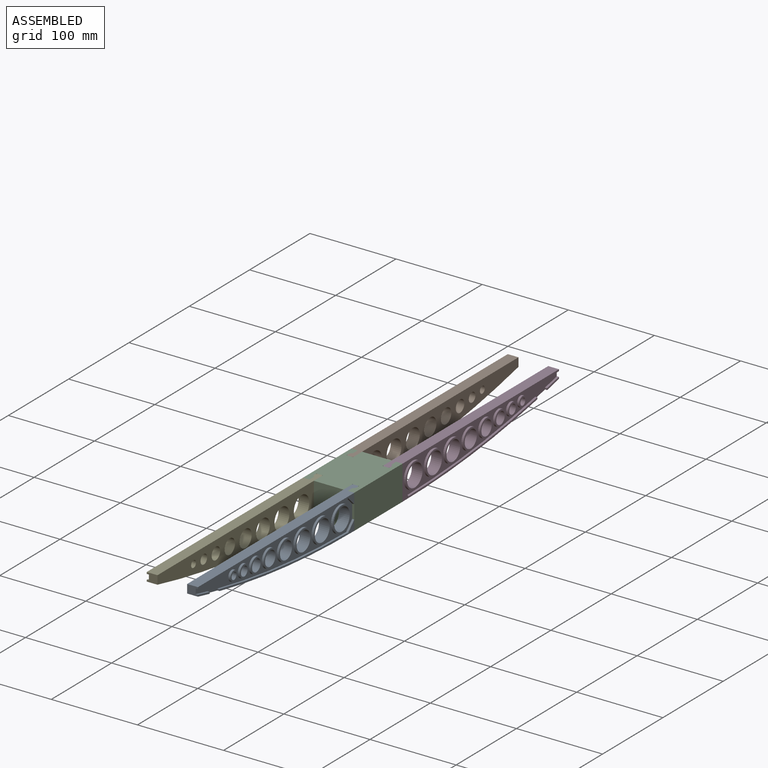
[diagram: assembled view]
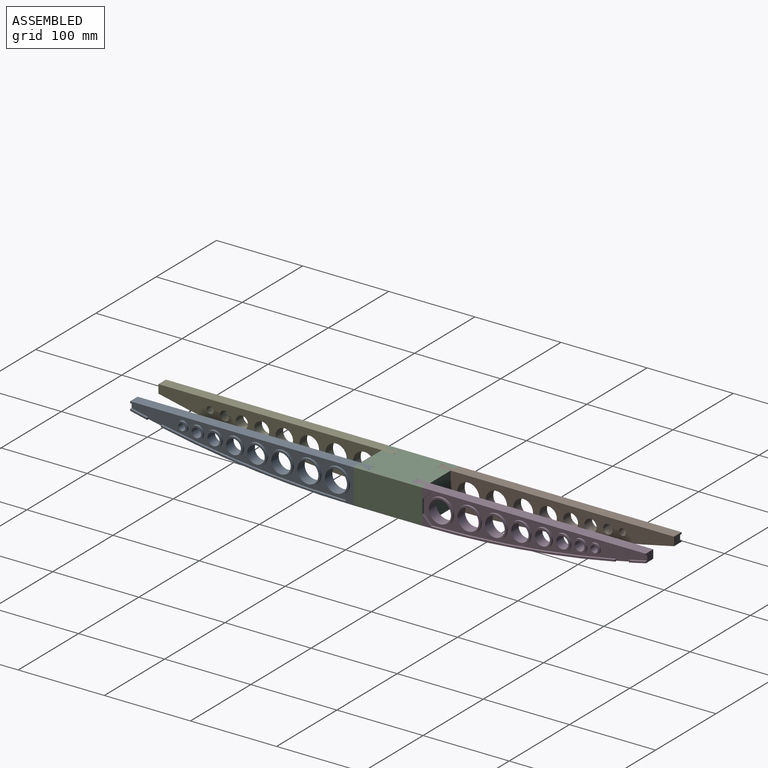
[diagram: assembled view, second angle]
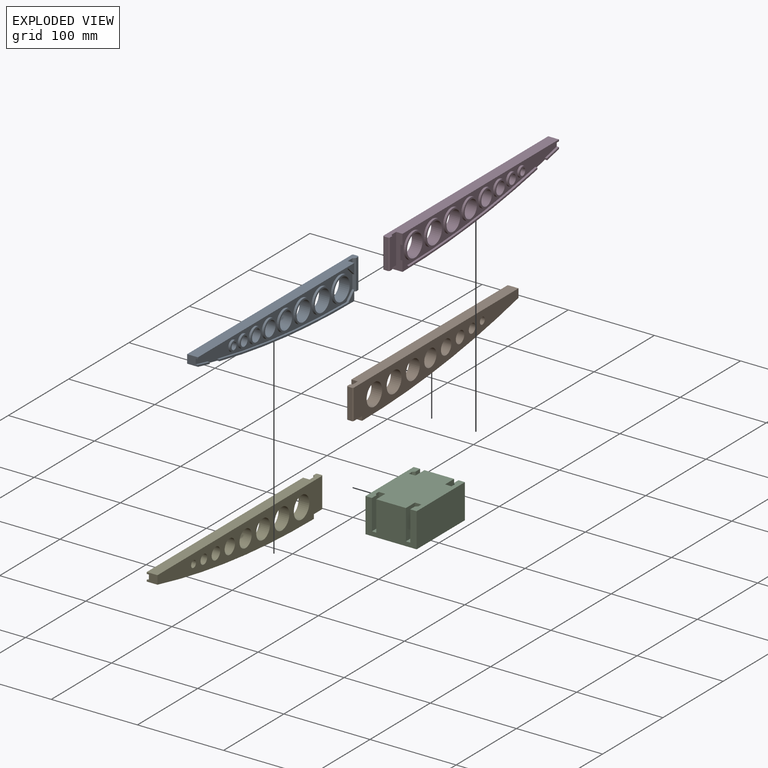
[diagram: exploded view]
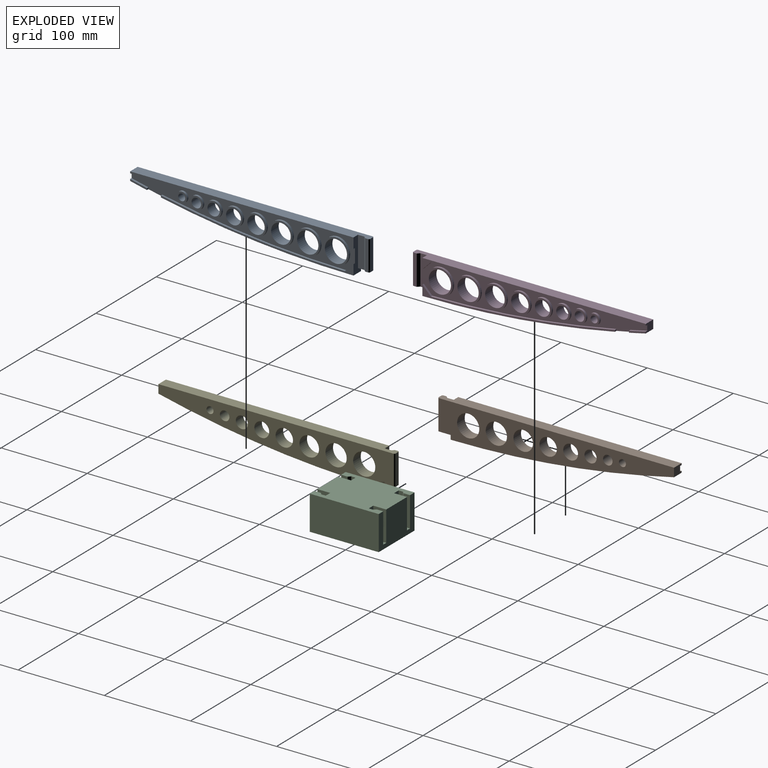
[diagram: exploded view, second angle]
ASSEMBLY  parts=5 mates=4
PART A: 49 faces, bbox 12.5x274.4x40 mm
  f0: cylinder r=1136.04mm len=259.35mm, axis (-1,0,0), area 3220.1mm2, adj f1,f3,f4,f6,f7,f10,f45,f46
  f1: plane 19.56x6.41mm, normal (-1,0,0), area 39mm2, adj f0,f2,f6,f45
  f2: cylinder r=1134.09mm len=19.56mm, axis (1,0,0), area 50.1mm2, adj f1,f3,f6,f45
  f3: plane 259.35x36.01mm, normal (-1,0,0), area 3435.9mm2, adj f0,f2,f4,f6,f9,f11,f21,f23
  f4: plane 40x12.5mm, normal (0,-1,0), area 284.9mm2, adj f0,f3,f5,f7,f8,f10,f36,f39
  f5: plane 274.35x12.5mm, normal (0,0,1), area 3331.5mm2, adj f4,f6,f7,f8,f36,f37,f38,f40
  f6: plane 12.5x10mm, normal (0,1,0), area 110mm2, adj f0,f1,f2,f3,f5,f7,f8,f9
  f7: plane 273.35x40mm, normal (1,0,0), area 6025.4mm2, adj f0,f4,f5,f6,f12,f13,f14,f15
  f8: plane 259.35x12mm, normal (-1,0,0), area 568.7mm2, adj f4,f5,f6,f9,f44
  f9: plane 249.35x2.5mm, normal (0,0,-1), area 623.4mm2, adj f3,f6,f8,f44
  f10: plane 223.6x24.21mm, normal (-1,0,0), area 488.1mm2, adj f0,f4,f11,f43,f46
  f11: cylinder r=1134.09mm len=213.64mm, axis (1,0,0), area 537.8mm2, adj f3,f10,f43,f46
  f12: cylinder r=4.05mm len=12.5mm, axis (1,0,0), area 318.2mm2, adj f7,f20
  f13: cylinder r=5.5mm len=12.5mm, axis (1,0,0), area 432.3mm2, adj f7,f22
  f14: cylinder r=7.05mm len=14.1mm, axis (1,0,0), area 553.6mm2, adj f7,f24
  f15: cylinder r=8.61mm len=17.22mm, axis (1,0,0), area 676.2mm2, adj f7,f26
  f16: cylinder r=10.09mm len=20.18mm, axis (1,0,0), area 792.4mm2, adj f7,f28
  f17: cylinder r=11.37mm len=22.74mm, axis (1,0,0), area 892.9mm2, adj f7,f30
  f18: cylinder r=12.33mm len=24.66mm, axis (1,0,0), area 968.2mm2, adj f7,f32
  f19: cylinder r=12.87mm len=25.73mm, axis (1,0,0), area 1010.4mm2, adj f7,f34
  f20: plane 12.1x12.1mm, normal (-1,0,0), area 63.5mm2, adj f12,f21
  f21: cylinder r=6.05mm len=12.1mm, axis (1,0,0), area 95mm2, adj f3,f20
  f22: plane 15.01x15.01mm, normal (-1,0,0), area 81.7mm2, adj f13,f23
  f23: cylinder r=7.5mm len=15.01mm, axis (1,0,0), area 117.9mm2, adj f3,f22
  f24: plane 18.1x18.1mm, normal (-1,0,0), area 101.1mm2, adj f14,f25
  f25: cylinder r=9.05mm len=18.1mm, axis (1,0,0), area 142.1mm2, adj f3,f24
  f26: plane 21.22x21.22mm, normal (-1,0,0), area 120.8mm2, adj f15,f27
  f27: cylinder r=10.61mm len=21.22mm, axis (1,0,0), area 166.7mm2, adj f3,f26
  f28: plane 24.18x24.18mm, normal (-1,0,0), area 139.4mm2, adj f16,f29
  f29: cylinder r=12.09mm len=24.18mm, axis (1,0,0), area 189.9mm2, adj f3,f28
  f30: plane 26.74x26.74mm, normal (-1,0,0), area 155.4mm2, adj f17,f31
  f31: cylinder r=13.37mm len=26.74mm, axis (1,0,0), area 210mm2, adj f3,f30
  f32: plane 28.66x28.66mm, normal (-1,0,0), area 167.5mm2, adj f18,f33
  f33: cylinder r=14.33mm len=28.66mm, axis (1,0,0), area 225.1mm2, adj f3,f32
  f34: plane 29.73x29.73mm, normal (-1,0,0), area 174.2mm2, adj f19,f35
  f35: cylinder r=14.87mm len=29.73mm, axis (1,0,0), area 233.5mm2, adj f3,f34
  f36: plane 35x7.5mm, normal (-1,0,0), area 262.5mm2, adj f4,f5,f37,f39
  f37: plane 35x2.5mm, normal (-0.71,0.71,0), area 123.7mm2, adj f5,f36,f38,f39
  f38: plane 35x4mm, normal (-1,0,0), area 140mm2, adj f5,f37,f39,f42
  f39: plane 15x7.5mm, normal (0,0,-1), area 89.6mm2, adj f4,f7,f36,f37,f38,f40,f41,f42
  f40: plane 35x5.5mm, normal (0,-1,0), area 192.5mm2, adj f5,f39,f41,f42
  f41: plane 35x1mm, normal (0.71,-0.71,0), area 49.5mm2, adj f5,f7,f39,f40
  f42: plane 35x1mm, normal (-0.71,-0.71,0), area 49.5mm2, adj f5,f38,f39,f40
  f43: plane 9.96x9.96mm, normal (0,0.71,0.71), area 35.2mm2, adj f3,f4,f10,f11
  f44: plane 10x10mm, normal (0,0.71,-0.71), area 35.4mm2, adj f3,f4,f8,f9
  f45: plane 2.5x1.99mm, normal (0,-1,0), area 5mm2, adj f0,f1,f2,f3
  f46: plane 2.5x1.99mm, normal (0,1,0), area 5mm2, adj f0,f3,f10,f11
  f47: cylinder r=1.7mm len=7.95mm, axis (0,0,-1), area 81.1mm2, adj f0,f48
  f48: cone r=0mm half-angle=59deg, axis (0,0,-1), area 10.6mm2, adj f47
PART B: same geometry as A
PART C: 30 faces, bbox 59.5x80x40 mm
  f0: plane 59.45x40mm, normal (0,1,0), area 2028mm2, adj f2,f3,f4,f5,f6,f7,f9,f24
  f1: plane 59.45x40mm, normal (0,-1,0), area 2028mm2, adj f2,f3,f4,f5,f12,f13,f15,f18
  f2: plane 80x59.45mm, normal (0,0,1), area 4393.5mm2, adj f0,f1,f4,f5,f7,f8,f9,f10
  f3: plane 80x59.45mm, normal (0,0,-1), area 4756mm2, adj f0,f1,f4,f5
  f4: plane 80x40mm, normal (-1,0,0), area 3200mm2, adj f0,f1,f2,f3
  f5: plane 80x40mm, normal (1,0,0), area 3200mm2, adj f0,f1,f2,f3
  f6: plane 15x7.5mm, normal (0,0,1), area 90.6mm2, adj f0,f7,f8,f9,f10,f11
  f7: plane 35x7.5mm, normal (1,0,0), area 262.5mm2, adj f0,f2,f6,f8
  f8: plane 35x2.5mm, normal (0.71,-0.71,0), area 123.7mm2, adj f2,f6,f7,f10
  f9: plane 35x15mm, normal (-1,0,0), area 525mm2, adj f0,f2,f6,f11
  f10: plane 35x5mm, normal (1,0,0), area 175mm2, adj f2,f6,f8,f11
  f11: plane 35x7.5mm, normal (0,1,0), area 262.5mm2, adj f2,f6,f9,f10
  f12: plane 15x7.5mm, normal (0,0,1), area 90.6mm2, adj f1,f13,f14,f15,f16,f17
  f13: plane 35x7.5mm, normal (-1,0,0), area 262.5mm2, adj f1,f2,f12,f14
  f14: plane 35x2.5mm, normal (-0.71,0.71,0), area 123.7mm2, adj f2,f12,f13,f16
  f15: plane 35x15mm, normal (1,0,0), area 525mm2, adj f1,f2,f12,f17
  f16: plane 35x5mm, normal (-1,0,0), area 175mm2, adj f2,f12,f14,f17
  f17: plane 35x7.5mm, normal (0,-1,0), area 262.5mm2, adj f2,f12,f15,f16
  f18: plane 15x7.5mm, normal (0,0,1), area 90.6mm2, adj f1,f19,f20,f21,f22,f23
  f19: plane 35x15mm, normal (-1,0,0), area 525mm2, adj f1,f2,f18,f20
  f20: plane 35x7.5mm, normal (0,-1,0), area 262.5mm2, adj f2,f18,f19,f21
  f21: plane 35x5mm, normal (1,0,0), area 175mm2, adj f2,f18,f20,f22
  f22: plane 35x2.5mm, normal (0.71,0.71,0), area 123.7mm2, adj f2,f18,f21,f23
  f23: plane 35x7.5mm, normal (1,0,0), area 262.5mm2, adj f1,f2,f18,f22
  f24: plane 15x7.5mm, normal (0,0,1), area 90.6mm2, adj f0,f25,f26,f27,f28,f29
  f25: plane 35x7.5mm, normal (-1,0,0), area 262.5mm2, adj f0,f2,f24,f29
  f26: plane 35x15mm, normal (1,0,0), area 525mm2, adj f0,f2,f24,f27
  f27: plane 35x7.5mm, normal (0,1,0), area 262.5mm2, adj f2,f24,f26,f28
  f28: plane 35x5mm, normal (-1,0,0), area 175mm2, adj f2,f24,f27,f29
  f29: plane 35x2.5mm, normal (-0.71,-0.71,0), area 123.7mm2, adj f2,f24,f25,f28
PART D: 49 faces, bbox 12.5x274.4x40 mm
  f0: cylinder r=1136.04mm len=259.35mm, axis (1,0,0), area 3220.1mm2, adj f1,f3,f4,f6,f7,f10,f45,f46
  f1: plane 19.56x6.41mm, normal (1,0,0), area 39mm2, adj f0,f2,f6,f45
  f2: cylinder r=1134.09mm len=19.56mm, axis (-1,0,0), area 50.1mm2, adj f1,f3,f6,f45
  f3: plane 259.35x36.01mm, normal (1,0,0), area 3435.9mm2, adj f0,f2,f4,f6,f9,f11,f21,f23
  f4: plane 40x12.5mm, normal (0,-1,0), area 284.9mm2, adj f0,f3,f5,f7,f8,f10,f36,f39
  f5: plane 274.35x12.5mm, normal (0,0,1), area 3331.5mm2, adj f4,f6,f7,f8,f36,f37,f38,f40
  f6: plane 12.5x10mm, normal (0,1,0), area 110mm2, adj f0,f1,f2,f3,f5,f7,f8,f9
  f7: plane 273.35x40mm, normal (-1,0,0), area 6025.4mm2, adj f0,f4,f5,f6,f12,f13,f14,f15
  f8: plane 259.35x12mm, normal (1,0,0), area 568.7mm2, adj f4,f5,f6,f9,f44
  f9: plane 249.35x2.5mm, normal (0,0,-1), area 623.4mm2, adj f3,f6,f8,f44
  f10: plane 223.6x24.21mm, normal (1,0,0), area 488.1mm2, adj f0,f4,f11,f43,f46
  f11: cylinder r=1134.09mm len=213.64mm, axis (-1,0,0), area 537.8mm2, adj f3,f10,f43,f46
  f12: cylinder r=4.05mm len=12.5mm, axis (-1,0,0), area 318.2mm2, adj f7,f20
  f13: cylinder r=5.5mm len=12.5mm, axis (-1,0,0), area 432.3mm2, adj f7,f22
  f14: cylinder r=7.05mm len=14.1mm, axis (-1,0,0), area 553.6mm2, adj f7,f24
  f15: cylinder r=8.61mm len=17.22mm, axis (-1,0,0), area 676.2mm2, adj f7,f26
  f16: cylinder r=10.09mm len=20.18mm, axis (-1,0,0), area 792.4mm2, adj f7,f28
  f17: cylinder r=11.37mm len=22.74mm, axis (-1,0,0), area 892.9mm2, adj f7,f30
  f18: cylinder r=12.33mm len=24.66mm, axis (-1,0,0), area 968.2mm2, adj f7,f32
  f19: cylinder r=12.87mm len=25.73mm, axis (-1,0,0), area 1010.4mm2, adj f7,f34
  f20: plane 12.1x12.1mm, normal (1,0,0), area 63.5mm2, adj f12,f21
  f21: cylinder r=6.05mm len=12.1mm, axis (-1,0,0), area 95mm2, adj f3,f20
  f22: plane 15.01x15.01mm, normal (1,0,0), area 81.7mm2, adj f13,f23
  f23: cylinder r=7.5mm len=15.01mm, axis (-1,0,0), area 117.9mm2, adj f3,f22
  f24: plane 18.1x18.1mm, normal (1,0,0), area 101.1mm2, adj f14,f25
  f25: cylinder r=9.05mm len=18.1mm, axis (-1,0,0), area 142.1mm2, adj f3,f24
  f26: plane 21.22x21.22mm, normal (1,0,0), area 120.8mm2, adj f15,f27
  f27: cylinder r=10.61mm len=21.22mm, axis (-1,0,0), area 166.7mm2, adj f3,f26
  f28: plane 24.18x24.18mm, normal (1,0,0), area 139.4mm2, adj f16,f29
  f29: cylinder r=12.09mm len=24.18mm, axis (-1,0,0), area 189.9mm2, adj f3,f28
  f30: plane 26.74x26.74mm, normal (1,0,0), area 155.4mm2, adj f17,f31
  f31: cylinder r=13.37mm len=26.74mm, axis (-1,0,0), area 210mm2, adj f3,f30
  f32: plane 28.66x28.66mm, normal (1,0,0), area 167.5mm2, adj f18,f33
  f33: cylinder r=14.33mm len=28.66mm, axis (-1,0,0), area 225.1mm2, adj f3,f32
  f34: plane 29.73x29.73mm, normal (1,0,0), area 174.2mm2, adj f19,f35
  f35: cylinder r=14.87mm len=29.73mm, axis (-1,0,0), area 233.5mm2, adj f3,f34
  f36: plane 35x7.5mm, normal (1,0,0), area 262.5mm2, adj f4,f5,f37,f39
  f37: plane 35x2.5mm, normal (0.71,0.71,0), area 123.7mm2, adj f5,f36,f38,f39
  f38: plane 35x4mm, normal (1,0,0), area 140mm2, adj f5,f37,f39,f42
  f39: plane 15x7.5mm, normal (0,0,-1), area 89.6mm2, adj f4,f7,f36,f37,f38,f40,f41,f42
  f40: plane 35x5.5mm, normal (0,-1,0), area 192.5mm2, adj f5,f39,f41,f42
  f41: plane 35x1mm, normal (-0.71,-0.71,0), area 49.5mm2, adj f5,f7,f39,f40
  f42: plane 35x1mm, normal (0.71,-0.71,0), area 49.5mm2, adj f5,f38,f39,f40
  f43: plane 9.96x9.96mm, normal (0,0.71,0.71), area 35.2mm2, adj f3,f4,f10,f11
  f44: plane 10x10mm, normal (0,0.71,-0.71), area 35.4mm2, adj f3,f4,f8,f9
  f45: plane 2.5x1.99mm, normal (0,-1,0), area 5mm2, adj f0,f1,f2,f3
  f46: plane 2.5x1.99mm, normal (0,1,0), area 5mm2, adj f0,f3,f10,f11
  f47: cylinder r=1.7mm len=7.95mm, axis (0,0,-1), area 81.1mm2, adj f0,f48
  f48: cone r=0mm half-angle=59deg, axis (0,0,-1), area 10.6mm2, adj f47
PART E: same geometry as D
PLACE A rot(axis=(0,0,1),180deg) t=(0,0,0)mm
PLACE B at identity
PLACE C at identity fixed
PLACE D at identity
PLACE E rot(axis=(0,0,1),180deg) t=(0,0,0)mm
MATE fastened D.f5 <-> C.f2  axis (0,0,1) through (20.98,25,0)mm
MATE fastened A.f5 <-> C.f2  axis (0,0,1) through (20.98,-25,0)mm
MATE fastened E.f5 <-> C.f2  axis (0,0,1) through (-20.98,-25,0)mm
MATE fastened B.f5 <-> C.f2  axis (0,0,1) through (-20.98,25,0)mm
